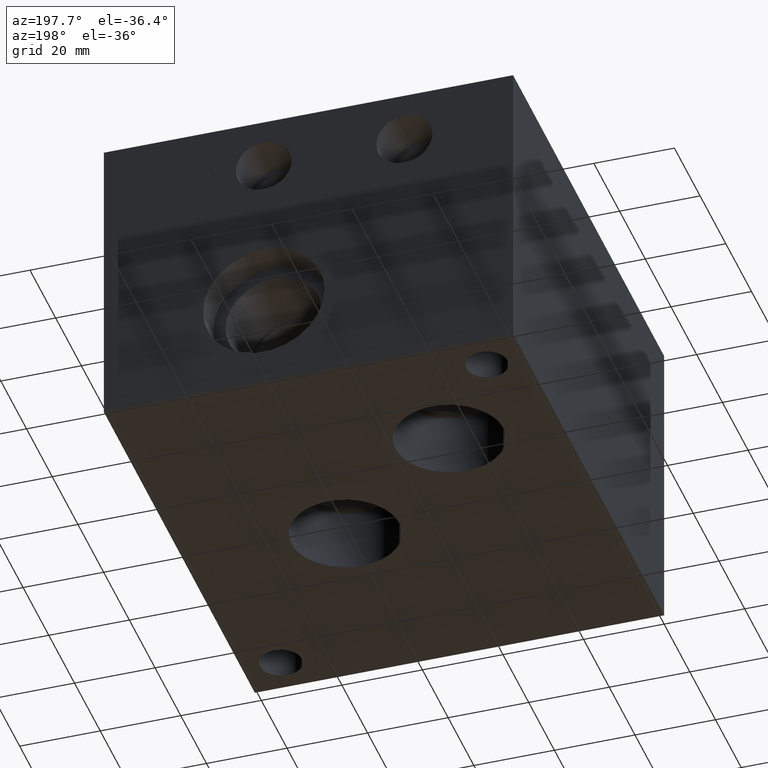
[diagram: clean part render]
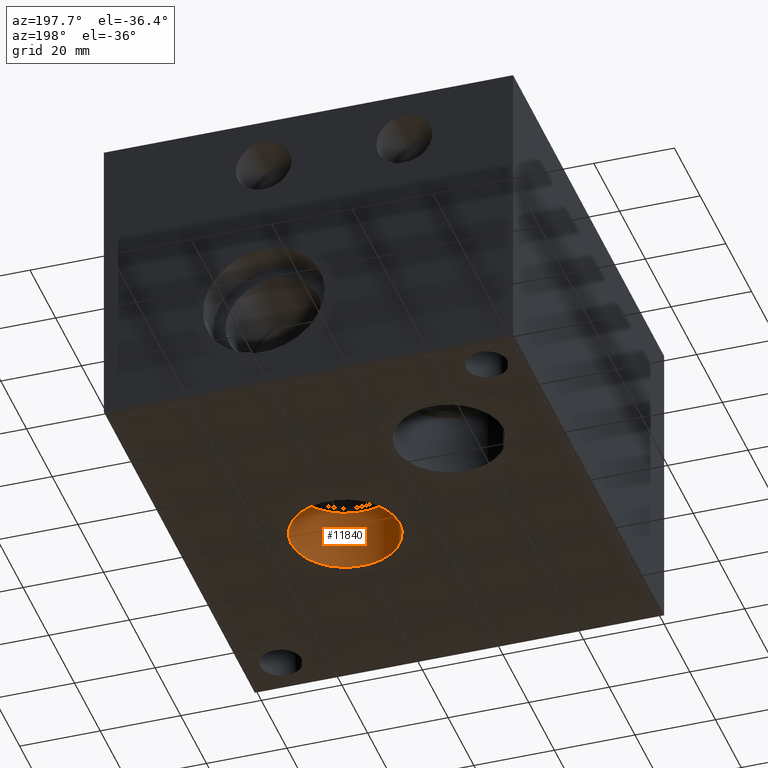
[diagram: same view with one face highlighted and labeled with its STEP entity id]
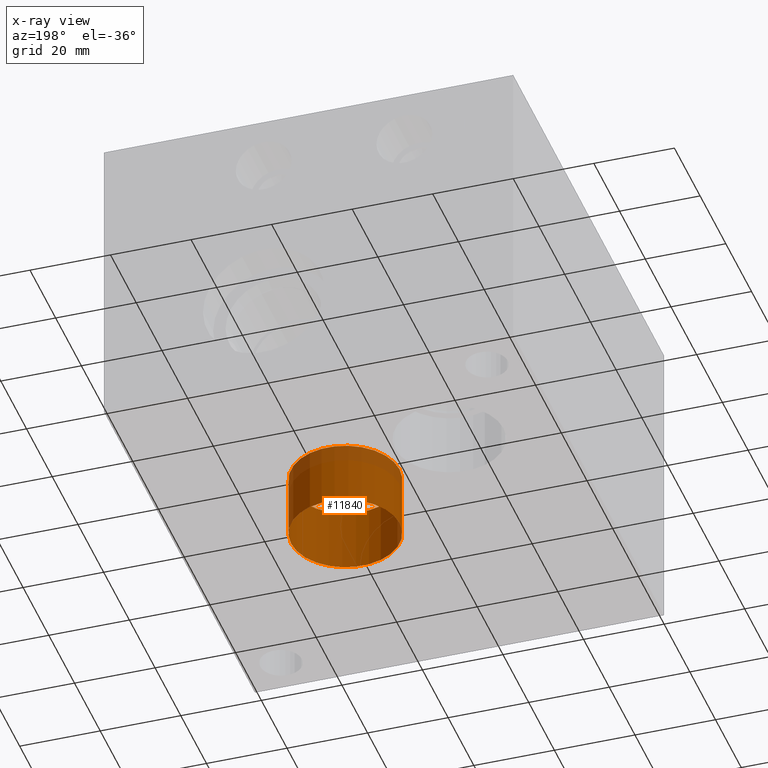
[diagram: x-ray of the same camera — body ghosted, the highlighted face saturated]
A machine part, auxiliary view. The second image highlights one B-rep face of the part: STEP entity #11840.
The next image is the same camera in x-ray: the body ghosted, the highlighted face saturated — about 15% of this face is hidden behind the body in this view.
In plain terms, the highlighted cylindrical surface (bore or boss wall) has radius 13.462 mm, axis along (0, 0, -1).
Its self-contained STEP definition (entity closure, byte-faithful):
#16=CYLINDRICAL_SURFACE('',#12347,13.462);
#93=CIRCLE('',#11961,13.462);
#94=CIRCLE('',#11962,13.462);
#116=CIRCLE('',#12344,13.462);
#117=CIRCLE('',#12345,13.462);
#1251=FACE_OUTER_BOUND('',#1909,.T.);
#1909=EDGE_LOOP('',(#10195,#10196,#10197,#10198,#10199,#10200));
#3147=LINE('',#19719,#4331);
#4331=VECTOR('',#14496,13.462);
#4721=VERTEX_POINT('',#15267);
#4722=VERTEX_POINT('',#15268);
#5631=VERTEX_POINT('',#19712);
#5632=VERTEX_POINT('',#19713);
#5856=EDGE_CURVE('',#4721,#4722,#93,.T.);
#5857=EDGE_CURVE('',#4722,#4721,#94,.T.);
#7211=EDGE_CURVE('',#5631,#5632,#116,.T.);
#7212=EDGE_CURVE('',#5632,#5631,#117,.T.);
#7214=EDGE_CURVE('',#4722,#5632,#3147,.T.);
#10195=ORIENTED_EDGE('',*,*,#5856,.F.);
#10196=ORIENTED_EDGE('',*,*,#5857,.F.);
#10197=ORIENTED_EDGE('',*,*,#7214,.T.);
#10198=ORIENTED_EDGE('',*,*,#7211,.F.);
#10199=ORIENTED_EDGE('',*,*,#7212,.F.);
#10200=ORIENTED_EDGE('',*,*,#7214,.F.);
#11840=ADVANCED_FACE('',(#1251),#16,.F.);
#11961=AXIS2_PLACEMENT_3D('',#15269,#12650,#12651);
#11962=AXIS2_PLACEMENT_3D('',#15270,#12652,#12653);
#12344=AXIS2_PLACEMENT_3D('',#19714,#14488,#14489);
#12345=AXIS2_PLACEMENT_3D('',#19715,#14490,#14491);
#12347=AXIS2_PLACEMENT_3D('',#19718,#14494,#14495);
#12650=DIRECTION('center_axis',(0.,0.,1.));
#12651=DIRECTION('ref_axis',(1.,0.,0.));
#12652=DIRECTION('center_axis',(0.,0.,1.));
#12653=DIRECTION('ref_axis',(1.,0.,0.));
#14488=DIRECTION('center_axis',(0.,0.,-1.));
#14489=DIRECTION('ref_axis',(1.,0.,0.));
#14490=DIRECTION('center_axis',(0.,0.,-1.));
#14491=DIRECTION('ref_axis',(1.,0.,0.));
#14494=DIRECTION('center_axis',(0.,0.,-1.));
#14495=DIRECTION('ref_axis',(1.,0.,0.));
#14496=DIRECTION('',(0.,0.,1.));
#15267=CARTESIAN_POINT('',(75.3872,53.975,0.));
#15268=CARTESIAN_POINT('',(48.4632,53.975,1.11022302462516E-15));
#15269=CARTESIAN_POINT('Origin',(61.9252,53.975,0.));
#15270=CARTESIAN_POINT('Origin',(61.9252,53.975,0.));
#19712=CARTESIAN_POINT('',(75.3872,53.975,15.8496));
#19713=CARTESIAN_POINT('',(48.4632,53.975,15.8496));
#19714=CARTESIAN_POINT('Origin',(61.9252,53.975,15.8496));
#19715=CARTESIAN_POINT('Origin',(61.9252,53.975,15.8496));
#19718=CARTESIAN_POINT('Origin',(61.9252,53.975,7.9248));
#19719=CARTESIAN_POINT('',(48.4632,53.975,7.9248));